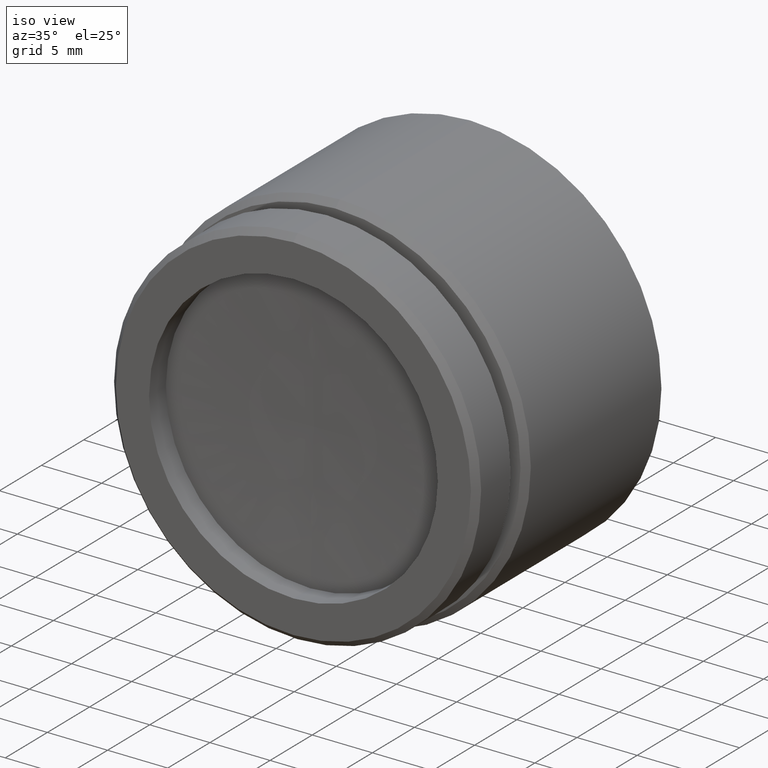
[diagram: clean part render]
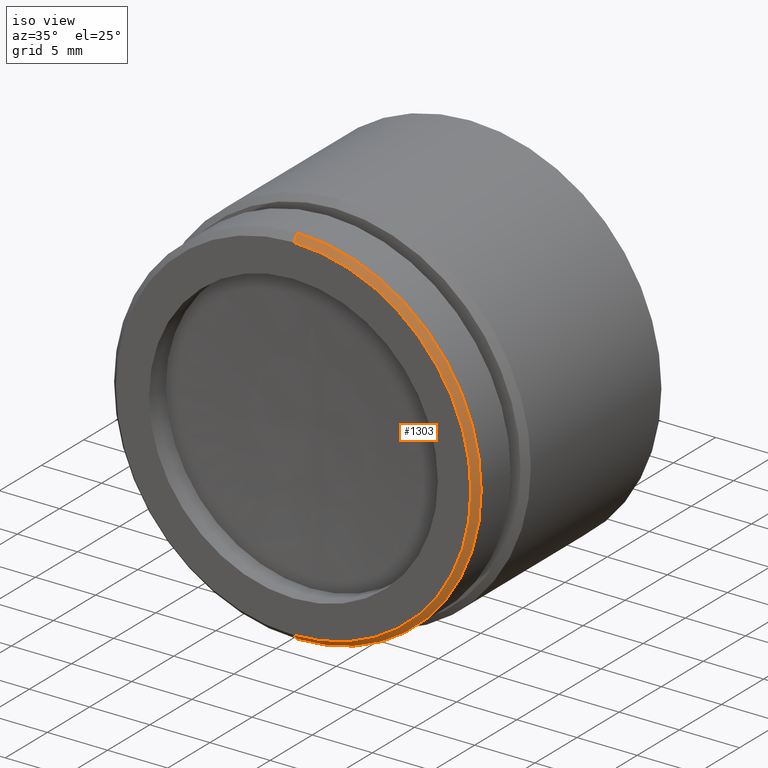
[diagram: same view with one face highlighted and labeled with its STEP entity id]
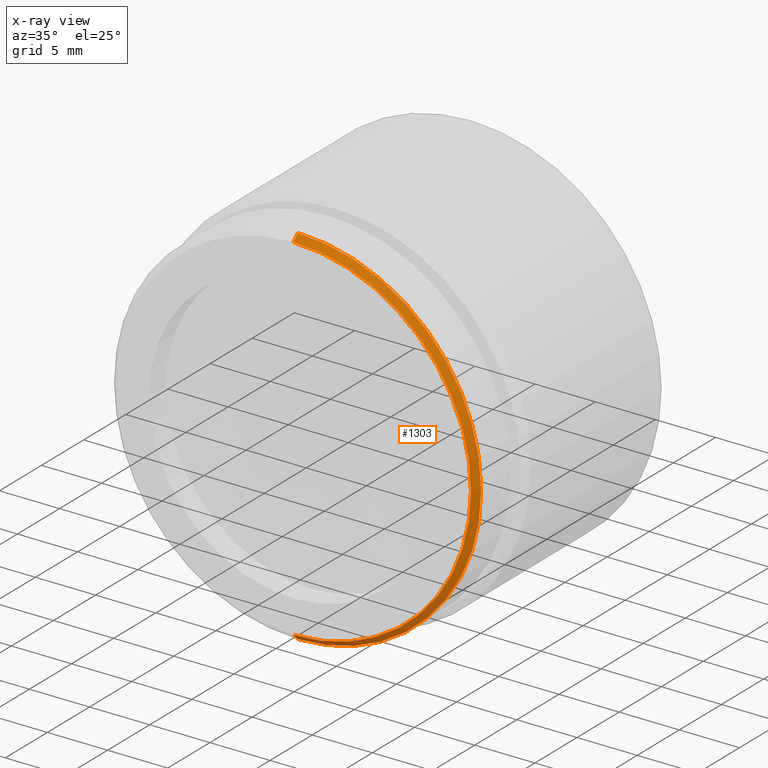
[diagram: x-ray of the same camera — body ghosted, the highlighted face saturated]
A machine part, iso view. The second image highlights one B-rep face of the part: STEP entity #1303.
The next image is the same camera in x-ray: the body ghosted, the highlighted face saturated — about 0% of this face is hidden behind the body in this view.
In plain terms, the highlighted conical surface has half-angle 45 deg.
Its self-contained STEP definition (entity closure, byte-faithful):
#3 = DIRECTION ( 'NONE',  ( 0.000000000000000000, 0.000000000000000000, -1.000000000000000000 ) ) ;
#45 = VECTOR ( 'NONE', #1072, 1000.000000000000114 ) ;
#92 = EDGE_CURVE ( 'NONE', #1510, #556, #286, .T. ) ;
#123 = CIRCLE ( 'NONE', #1103, 14.75000000000000000 ) ;
#132 = DIRECTION ( 'NONE',  ( 0.000000000000000000, 0.000000000000000000, -1.000000000000000000 ) ) ;
#161 = VERTEX_POINT ( 'NONE', #501 ) ;
#187 = DIRECTION ( 'NONE',  ( 0.000000000000000000, 0.000000000000000000, 1.000000000000000000 ) ) ;
#217 = CONICAL_SURFACE ( 'NONE', #832, 14.75000000000000000, 0.7853981633974503884 ) ;
#286 = CIRCLE ( 'NONE', #1007, 15.25000000000000000 ) ;
#320 = EDGE_CURVE ( 'NONE', #438, #161, #123, .T. ) ;
#327 = CARTESIAN_POINT ( 'NONE',  ( -62.96855859389908971, 4.653165921879426570, 4.676470295292562973 ) ) ;
#346 = LINE ( 'NONE', #691, #830 ) ;
#348 = DIRECTION ( 'NONE',  ( 0.000000000000000000, -1.000000000000000000, 0.000000000000000000 ) ) ;
#438 = VERTEX_POINT ( 'NONE', #837 ) ;
#442 = DIRECTION ( 'NONE',  ( 0.000000000000000000, 0.7071067811865460184, 0.7071067811865489050 ) ) ;
#486 = LINE ( 'NONE', #955, #45 ) ;
#501 = CARTESIAN_POINT ( 'NONE',  ( -62.96855859389908971, 4.153165921879421241, 34.67647029529256031 ) ) ;
#556 = VERTEX_POINT ( 'NONE', #327 ) ;
#570 = CARTESIAN_POINT ( 'NONE',  ( -62.96855859389908971, 4.153165921879421241, 19.92647029529256386 ) ) ;
#577 = EDGE_LOOP ( 'NONE', ( #1448, #1058, #1002, #792 ) ) ;
#691 = CARTESIAN_POINT ( 'NONE',  ( -62.96855859389908971, 4.153165921879421241, 34.67647029529256031 ) ) ;
#792 = ORIENTED_EDGE ( 'NONE', *, *, #1055, .F. ) ;
#830 = VECTOR ( 'NONE', #442, 1000.000000000000114 ) ;
#832 = AXIS2_PLACEMENT_3D ( 'NONE', #570, #1252, #187 ) ;
#837 = CARTESIAN_POINT ( 'NONE',  ( -62.96855859389908971, 4.153165921879421241, 5.176470295292563861 ) ) ;
#845 = CARTESIAN_POINT ( 'NONE',  ( -62.96855859389908971, 4.153165921879421241, 19.92647029529256386 ) ) ;
#918 = FACE_OUTER_BOUND ( 'NONE', #577, .T. ) ;
#942 = CARTESIAN_POINT ( 'NONE',  ( -62.96855859389908971, 4.653165921879426570, 19.92647029529256386 ) ) ;
#955 = CARTESIAN_POINT ( 'NONE',  ( -62.96855859389908971, 4.153165921879421241, 5.176470295292563861 ) ) ;
#1002 = ORIENTED_EDGE ( 'NONE', *, *, #92, .F. ) ;
#1007 = AXIS2_PLACEMENT_3D ( 'NONE', #942, #1052, #3 ) ;
#1052 = DIRECTION ( 'NONE',  ( 0.000000000000000000, 1.000000000000000000, 0.000000000000000000 ) ) ;
#1055 = EDGE_CURVE ( 'NONE', #161, #1510, #346, .T. ) ;
#1058 = ORIENTED_EDGE ( 'NONE', *, *, #1497, .T. ) ;
#1072 = DIRECTION ( 'NONE',  ( 8.659560562354948882E-17, 0.7071067811865460184, -0.7071067811865489050 ) ) ;
#1103 = AXIS2_PLACEMENT_3D ( 'NONE', #845, #348, #132 ) ;
#1252 = DIRECTION ( 'NONE',  ( 0.000000000000000000, 1.000000000000000000, 0.000000000000000000 ) ) ;
#1303 = ADVANCED_FACE ( 'NONE', ( #918 ), #217, .T. ) ;
#1440 = CARTESIAN_POINT ( 'NONE',  ( -62.96855859389908971, 4.653165921879426570, 35.17647029529256031 ) ) ;
#1448 = ORIENTED_EDGE ( 'NONE', *, *, #320, .F. ) ;
#1497 = EDGE_CURVE ( 'NONE', #438, #556, #486, .T. ) ;
#1510 = VERTEX_POINT ( 'NONE', #1440 ) ;